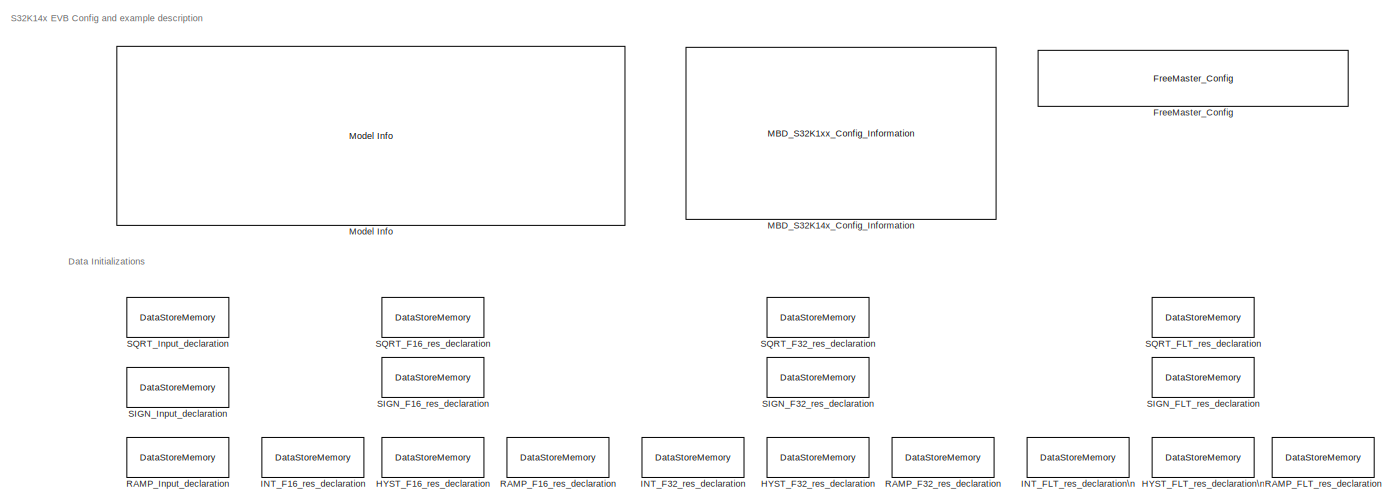
[diagram: root canvas - part 1/4, full width, top band]
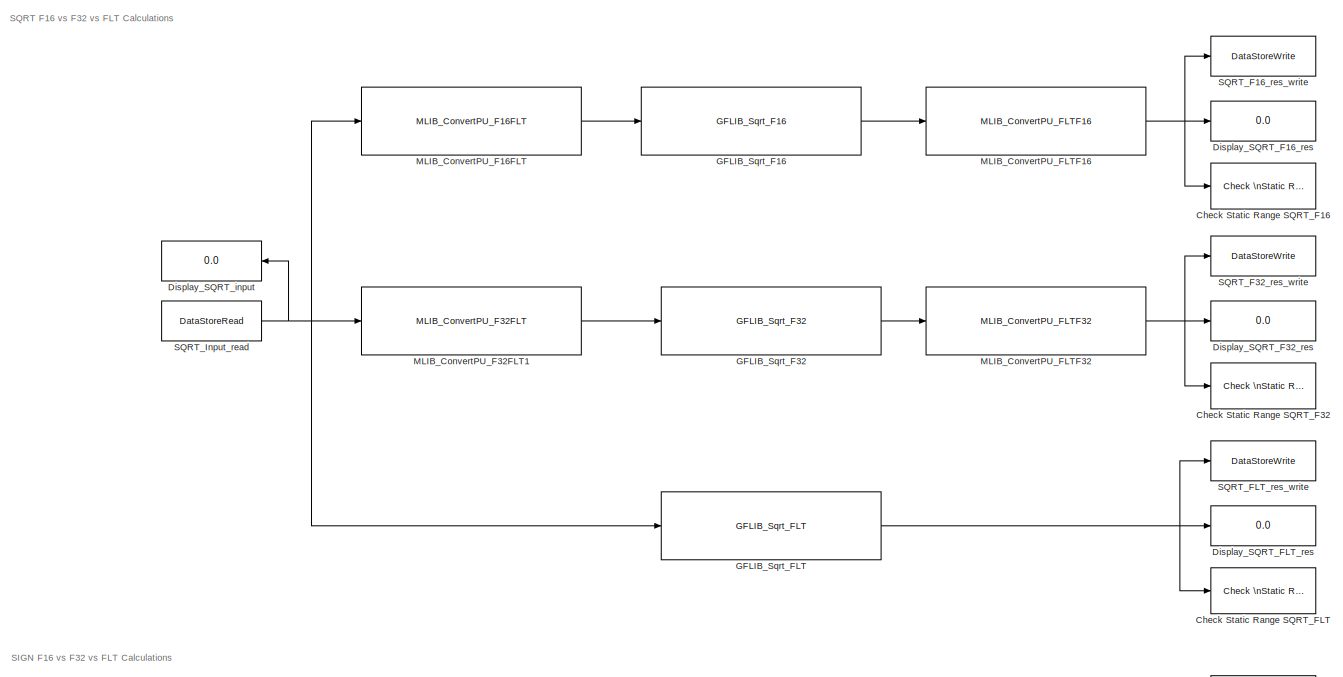
[diagram: root canvas - part 2/4, full width, middle band]
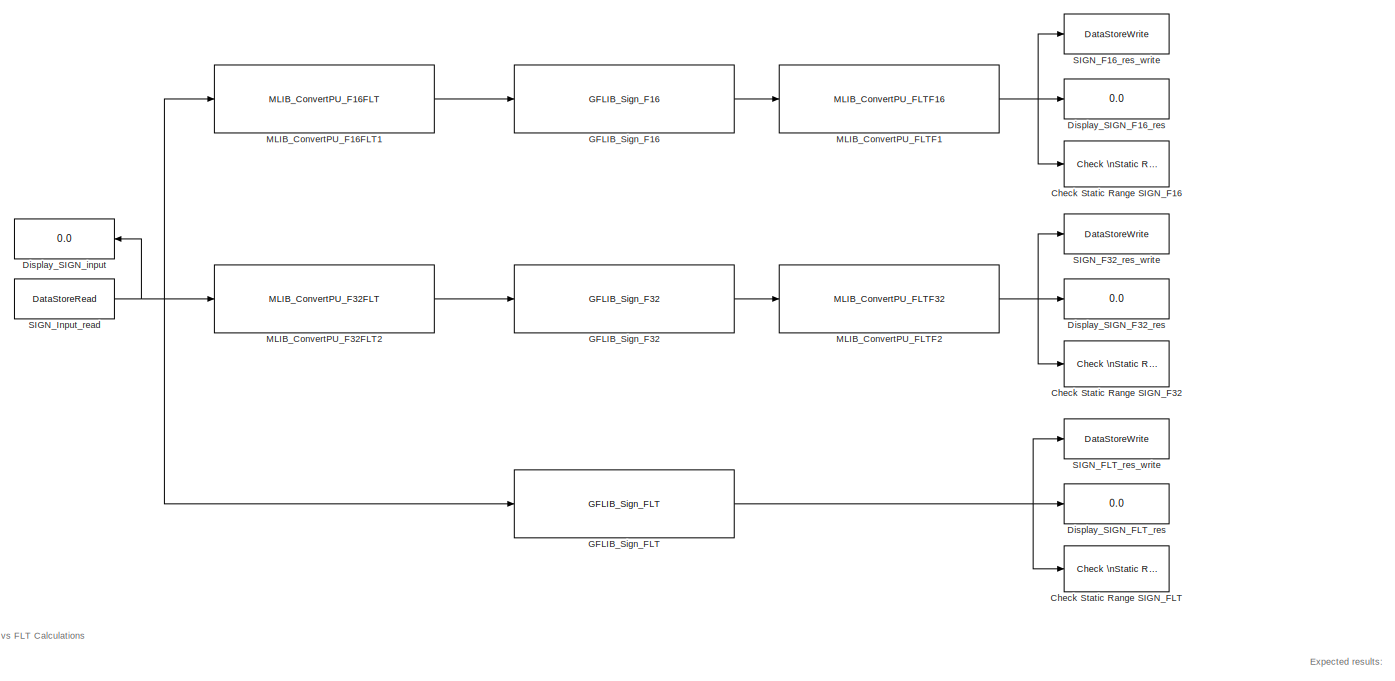
[diagram: root canvas - part 3/4, full width, middle band]
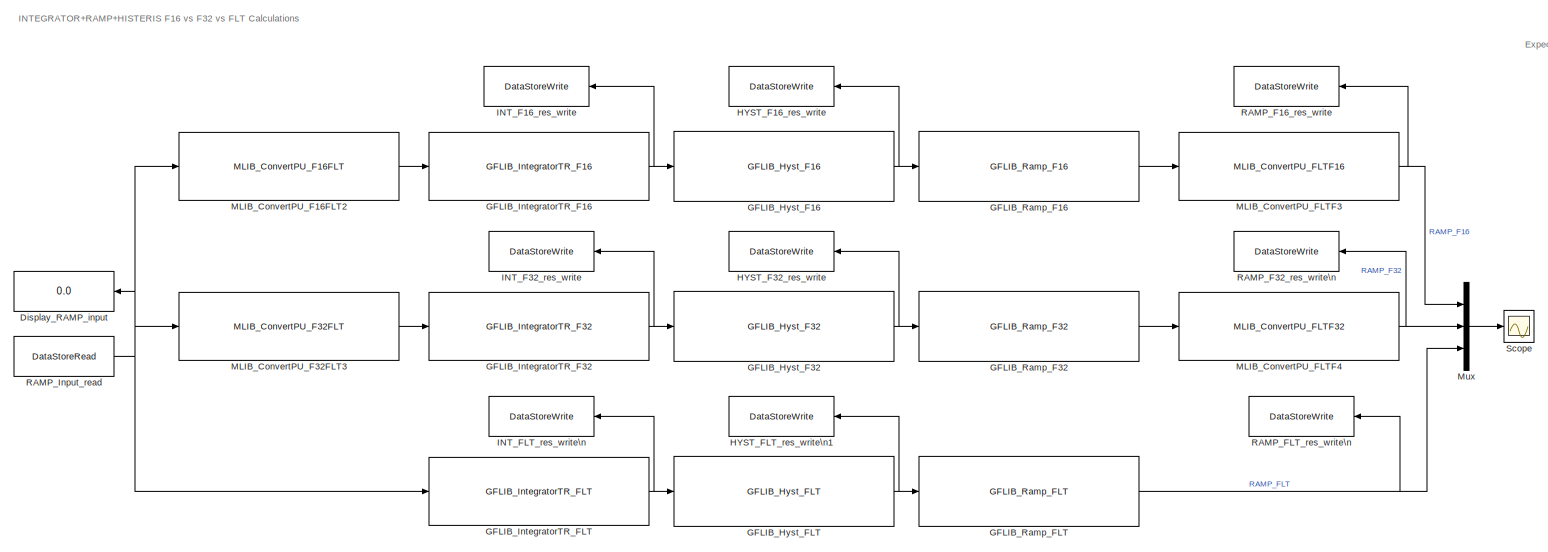
[diagram: root canvas - part 4/4, full width, bottom band]
MODEL ammclib_gflib_miscellaneous_s32k14x
KIND model
CONFIG InitFcn = mbd_s32k_consistency_checks(bdroot(gcs));
BLOCK [Reference] Check Static Range SIGN_F16   REF=simulink/Model\nVerification/Check \nStatic Range
  Description = -1 <= u <= 1
  Ports = [1]
  SID = 648
  SourceBlock = simulink/Model\nVerification/Check \nStatic Range
  SourceProductBaseCode = SL
  SourceProductName = Simulink
  SourceType = Checks_SRange
  enabled = on
  export = off
  icon = graphic
  max = 1
  max_included = on
  min = -1
  min_included = on
  stopWhenAssertionFail = on
BLOCK [Reference] Check Static Range SIGN_F32  REF=simulink/Model\nVerification/Check \nStatic Range
  Description = -1 <= u <= 1
  Ports = [1]
  SID = 649
  SourceBlock = simulink/Model\nVerification/Check \nStatic Range
  SourceProductBaseCode = SL
  SourceProductName = Simulink
  SourceType = Checks_SRange
  enabled = on
  export = off
  icon = graphic
  max = 1
  max_included = on
  min = -1
  min_included = on
  stopWhenAssertionFail = on
BLOCK [Reference] Check Static Range SIGN_FLT    REF=simulink/Model\nVerification/Check \nStatic Range
  Description = -1 <= u <= 1
  Ports = [1]
  SID = 650
  SourceBlock = simulink/Model\nVerification/Check \nStatic Range
  SourceProductBaseCode = SL
  SourceProductName = Simulink
  SourceType = Checks_SRange
  enabled = on
  export = off
  icon = graphic
  max = 1
  max_included = on
  min = -1
  min_included = on
  stopWhenAssertionFail = on
BLOCK [Reference] Check Static Range SQRT_F16   REF=simulink/Model\nVerification/Check \nStatic Range
  Description = 0.7 <= u <= 0.8
  Ports = [1]
  SID = 585
  SourceBlock = simulink/Model\nVerification/Check \nStatic Range
  SourceProductBaseCode = SL
  SourceProductName = Simulink
  SourceType = Checks_SRange
  enabled = on
  export = off
  icon = graphic
  max = 0.8
  max_included = on
  min = 0.7
  min_included = on
  stopWhenAssertionFail = on
BLOCK [Reference] Check Static Range SQRT_F32  REF=simulink/Model\nVerification/Check \nStatic Range
  Description = 0.7 <= u <= 0.8
  Ports = [1]
  SID = 641
  SourceBlock = simulink/Model\nVerification/Check \nStatic Range
  SourceProductBaseCode = SL
  SourceProductName = Simulink
  SourceType = Checks_SRange
  enabled = on
  export = off
  icon = graphic
  max = 0.8
  max_included = on
  min = 0.7
  min_included = on
  stopWhenAssertionFail = on
BLOCK [Reference] Check Static Range SQRT_FLT  REF=simulink/Model\nVerification/Check \nStatic Range
  Description = 0.7 <= u <= 0.8
  Ports = [1]
  SID = 646
  SourceBlock = simulink/Model\nVerification/Check \nStatic Range
  SourceProductBaseCode = SL
  SourceProductName = Simulink
  SourceType = Checks_SRange
  enabled = on
  export = off
  icon = graphic
  max = 0.8
  max_included = on
  min = 0.7
  min_included = on
  stopWhenAssertionFail = on
BLOCK [Display] Display_RAMP_input
  Decimation = 1
  Format = long
  Ports = [1]
  SID = 675
BLOCK [Display] Display_SIGN_F16_res
  Decimation = 1
  Format = long
  Ports = [1]
  SID = 651
BLOCK [Display] Display_SIGN_F32_res
  Decimation = 1
  Format = long
  Ports = [1]
  SID = 652
BLOCK [Display] Display_SIGN_FLT_res
  Decimation = 1
  Format = long
  Ports = [1]
  SID = 653
BLOCK [Display] Display_SIGN_input
  Decimation = 1
  Format = long
  Ports = [1]
  SID = 654
BLOCK [Display] Display_SQRT_F16_res
  Decimation = 1
  Format = long
  Ports = [1]
  SID = 579
BLOCK [Display] Display_SQRT_F32_res
  Decimation = 1
  Format = long
  Ports = [1]
  SID = 638
BLOCK [Display] Display_SQRT_FLT_res
  Decimation = 1
  Format = long
  Ports = [1]
  SID = 645
BLOCK [Display] Display_SQRT_input
  Decimation = 1
  Format = long
  Ports = [1]
  SID = 584
BLOCK [Reference] FreeMaster_Config  REF=mbd_s32k1xx_ec_toolbox/Utility Blocks/FreeMaster_Config
  Ports = []
  SID = 564
  SourceBlock = mbd_s32k1xx_ec_toolbox/Utility Blocks/FreeMaster_Config
  SourceType = fm_s32k_config
  baudrate = 115200
  comm_buffer_size = 255
  comm_buffer_size_auto = on
  comm_rqueue_size = 32
  comm_rqueue_size_default = on
  interface = LPUART1
  isr_prio = 15
  max_rec_vars = 8
  max_scope_vars = 8
  mode = Short Interrupt
  rec_buff_size = 1024
  rec_timebase = 0
  rec_timebase_unit = milliseconds
  rxd = PTC6: [LPUART1_RX | Receive]
  show_adv_opts = off
  txd = PTC7: [LPUART1_TX | Transmit]
  use_recorder = on
  use_scope = on
BLOCK [Reference] GFLIB_Hyst_F16  REF=ammclib_bam_s32k14x/GFLIB/bam_f16/GFLIB_Hyst_F16  (lib defined in mdl_f341c9dd7fd9)
  Ports = [1, 1]
  SID = 682
  SourceBlock = ammclib_bam_s32k14x/GFLIB/bam_f16/GFLIB_Hyst_F16
  SourceType = GFLIB_Hyst_F16
  f16HystOff = -(2^15-1)/2
  f16HystOn = (2^15-1)/2
  f16OutValOff = -0.03*(2^15-1)
  f16OutValOn = 0.03*(2^15-1)
BLOCK [Reference] GFLIB_Hyst_F32  REF=ammclib_bam_s32k14x/GFLIB/bam_f32/GFLIB_Hyst_F32  (lib defined in mdl_f341c9dd7fd9)
  Ports = [1, 1]
  SID = 695
  SourceBlock = ammclib_bam_s32k14x/GFLIB/bam_f32/GFLIB_Hyst_F32
  SourceType = GFLIB_Hyst_F32
  f32HystOff = -(2^31-1)/2
  f32HystOn = (2^31-1)/2
  f32OutValOff = -0.03*(2^31-1)
  f32OutValOn = 0.03*(2^31-1)
BLOCK [Reference] GFLIB_Hyst_FLT  REF=ammclib_bam_s32k14x/GFLIB/bam_flt/GFLIB_Hyst_FLT  (lib defined in mdl_f341c9dd7fd9)
  Ports = [1, 1]
  SID = 702
  SourceBlock = ammclib_bam_s32k14x/GFLIB/bam_flt/GFLIB_Hyst_FLT
  SourceType = GFLIB_Hyst_FLT
  fltHystOff = -0.5
  fltHystOn = 0.5
  fltOutValOff = -0.03
  fltOutValOn = 0.03
BLOCK [Reference] GFLIB_IntegratorTR_F16  REF=ammclib_bam_s32k14x/GFLIB/bam_f16/GFLIB_IntegratorTR_F16  (lib defined in mdl_f341c9dd7fd9)
  Ports = [1, 1]
  SID = 678
  SourceBlock = ammclib_bam_s32k14x/GFLIB/bam_f16/GFLIB_IntegratorTR_F16
  SourceType = GFLIB_IntegratorTR_F16
  f16C1 = 0.003*(2^15-1)
  u16NShift = 0
BLOCK [Reference] GFLIB_IntegratorTR_F32  REF=ammclib_bam_s32k14x/GFLIB/bam_f32/GFLIB_IntegratorTR_F32  (lib defined in mdl_f341c9dd7fd9)
  Ports = [1, 1]
  SID = 694
  SourceBlock = ammclib_bam_s32k14x/GFLIB/bam_f32/GFLIB_IntegratorTR_F32
  SourceType = GFLIB_IntegratorTR_F32
  f32C1 = 0.003*(2^31-1)
  u16NShift = 0
BLOCK [Reference] GFLIB_IntegratorTR_FLT  REF=ammclib_bam_s32k14x/GFLIB/bam_flt/GFLIB_IntegratorTR_FLT  (lib defined in mdl_f341c9dd7fd9)
  Ports = [1, 1]
  SID = 701
  SourceBlock = ammclib_bam_s32k14x/GFLIB/bam_flt/GFLIB_IntegratorTR_FLT
  SourceType = GFLIB_IntegratorTR_FLT
  fltC1 = 0.003
BLOCK [Reference] GFLIB_Ramp_F16  REF=ammclib_bam_s32k14x/GFLIB/bam_f16/GFLIB_Ramp_F16  (lib defined in mdl_f341c9dd7fd9)
  Ports = [1, 1]
  SID = 680
  SourceBlock = ammclib_bam_s32k14x/GFLIB/bam_f16/GFLIB_Ramp_F16
  SourceType = GFLIB_Ramp
  f16RampDown = 0.0001*(2^15-1)
  f16RampUp = 0.0001*(2^15-1)
BLOCK [Reference] GFLIB_Ramp_F32  REF=ammclib_bam_s32k14x/GFLIB/bam_f32/GFLIB_Ramp_F32  (lib defined in mdl_f341c9dd7fd9)
  Ports = [1, 1]
  SID = 696
  SourceBlock = ammclib_bam_s32k14x/GFLIB/bam_f32/GFLIB_Ramp_F32
  SourceType = GFLIB_Ramp
  f32RampDown = 0.0001*(2^31-1)
  f32RampUp = 0.0001*(2^31-1)
BLOCK [Reference] GFLIB_Ramp_FLT  REF=ammclib_bam_s32k14x/GFLIB/bam_flt/GFLIB_Ramp_FLT  (lib defined in mdl_f341c9dd7fd9)
  Ports = [1, 1]
  SID = 703
  SourceBlock = ammclib_bam_s32k14x/GFLIB/bam_flt/GFLIB_Ramp_FLT
  SourceType = GFLIB_Ramp
  fltRampDown = 0.0001
  fltRampUp = 0.0001
BLOCK [Reference] GFLIB_Sign_F16  REF=ammclib_bam_s32k14x/GFLIB/bam_f16/GFLIB_Sign_F16  (lib defined in mdl_f341c9dd7fd9)
  Ports = [1, 1]
  SID = 669
  SourceBlock = ammclib_bam_s32k14x/GFLIB/bam_f16/GFLIB_Sign_F16
  SourceType = GFLIB_Sign_F16
BLOCK [Reference] GFLIB_Sign_F32  REF=ammclib_bam_s32k14x/GFLIB/bam_f32/GFLIB_Sign_F32  (lib defined in mdl_f341c9dd7fd9)
  Ports = [1, 1]
  SID = 668
  SourceBlock = ammclib_bam_s32k14x/GFLIB/bam_f32/GFLIB_Sign_F32
  SourceType = GFLIB_Sign_F32
BLOCK [Reference] GFLIB_Sign_FLT  REF=ammclib_bam_s32k14x/GFLIB/bam_flt/GFLIB_Sign_FLT  (lib defined in mdl_f341c9dd7fd9)
  Ports = [1, 1]
  SID = 667
  SourceBlock = ammclib_bam_s32k14x/GFLIB/bam_flt/GFLIB_Sign_FLT
  SourceType = GFLIB_Sign_FLT
BLOCK [Reference] GFLIB_Sqrt_F16  REF=ammclib_bam_s32k14x/GFLIB/bam_f16/GFLIB_Sqrt_F16  (lib defined in mdl_f341c9dd7fd9)
  Ports = [1, 1]
  SID = 632
  SourceBlock = ammclib_bam_s32k14x/GFLIB/bam_f16/GFLIB_Sqrt_F16
  SourceType = GFLIB_Sqrt_F16
BLOCK [Reference] GFLIB_Sqrt_F32  REF=ammclib_bam_s32k14x/GFLIB/bam_f32/GFLIB_Sqrt_F32  (lib defined in mdl_f341c9dd7fd9)
  Ports = [1, 1]
  SID = 634
  SourceBlock = ammclib_bam_s32k14x/GFLIB/bam_f32/GFLIB_Sqrt_F32
  SourceType = GFLIB_Sqrt_F32
BLOCK [Reference] GFLIB_Sqrt_FLT  REF=ammclib_bam_s32k14x/GFLIB/bam_flt/GFLIB_Sqrt_FLT  (lib defined in mdl_f341c9dd7fd9)
  Ports = [1, 1]
  SID = 642
  SourceBlock = ammclib_bam_s32k14x/GFLIB/bam_flt/GFLIB_Sqrt_FLT
  SourceType = GFLIB_Sqrt_FLT
BLOCK [DataStoreMemory] HYST_F16_res_declaration
  DataStoreName = HYST_F16_res
  OutDataTypeStr = int16
  Priority = 2
  ReadBeforeWriteMsg = warning
  SID = 687
  ShowAdditionalParam = off
  WriteAfterReadMsg = warning
  WriteAfterWriteMsg = warning
BLOCK [DataStoreWrite] HYST_F16_res_write
  DataStoreName = HYST_F16_res
  Ports = [1]
  SID = 691
BLOCK [DataStoreMemory] HYST_F32_res_declaration
  DataStoreName = HYST_F32_res
  OutDataTypeStr = int32
  Priority = 2
  ReadBeforeWriteMsg = warning
  SID = 708
  ShowAdditionalParam = off
  WriteAfterReadMsg = warning
  WriteAfterWriteMsg = warning
BLOCK [DataStoreWrite] HYST_F32_res_write
  DataStoreName = HYST_F32_res
  Ports = [1]
  SID = 716
BLOCK [DataStoreMemory] HYST_FLT_res_declaration\n
  DataStoreName = HYST_FLT_res
  OutDataTypeStr = single
  Priority = 2
  ReadBeforeWriteMsg = warning
  SID = 711
  ShowAdditionalParam = off
  WriteAfterReadMsg = warning
  WriteAfterWriteMsg = warning
BLOCK [DataStoreWrite] HYST_FLT_res_write\n1
  DataStoreName = HYST_FLT_res
  Ports = [1]
  SID = 718
BLOCK [DataStoreMemory] INT_F16_res_declaration
  DataStoreName = INT_F16_res
  OutDataTypeStr = int16
  Priority = 2
  ReadBeforeWriteMsg = warning
  SID = 686
  ShowAdditionalParam = off
  WriteAfterReadMsg = warning
  WriteAfterWriteMsg = warning
BLOCK [DataStoreWrite] INT_F16_res_write
  DataStoreName = INT_F16_res
  Ports = [1]
  SID = 690
BLOCK [DataStoreMemory] INT_F32_res_declaration
  DataStoreName = INT_F32_res
  OutDataTypeStr = int32
  Priority = 2
  ReadBeforeWriteMsg = warning
  SID = 707
  ShowAdditionalParam = off
  WriteAfterReadMsg = warning
  WriteAfterWriteMsg = warning
BLOCK [DataStoreWrite] INT_F32_res_write
  DataStoreName = INT_F32_res
  Ports = [1]
  SID = 713
BLOCK [DataStoreMemory] INT_FLT_res_declaration\n
  DataStoreName = INT_FLT_res
  OutDataTypeStr = single
  Priority = 2
  ReadBeforeWriteMsg = warning
  SID = 710
  ShowAdditionalParam = off
  WriteAfterReadMsg = warning
  WriteAfterWriteMsg = warning
BLOCK [DataStoreWrite] INT_FLT_res_write\n
  DataStoreName = INT_FLT_res
  Ports = [1]
  SID = 714
BLOCK [Reference] MBD_S32K14x_Config_Information  REF=mbd_s32k1xx_ec_toolbox/MBD_S32K1xx_Config_Information
  ADC_PcrCheckEnDis = on
  AMMCLIB_PcrCheckEnDis = on
  CMP_PcrCheckEnDis = on
  CSEc_PcrCheckEnDis = on
  ConfigParams_PcrCheckEnDis = on
  FM_PcrCheckEnDis = on
  FTM_Dual_Edge_Inputs_PcrCheckEnDis = on
  FTM_Hall_Sensor_Inputs_PcrCheckEnDis = on
  FTM_Input_Edge_Inputs_PcrCheckEnDis = on
  FTM_PWM_PcrCheckEnDis = on
  FTM_Quadrature_Inputs_PcrCheckEnDis = on
  FlexCAN_PcrCheckEnDis = on
  FlexIO_PcrCheckEnDis = on
  GPIO_InputPcrCheckEnDis = on
  GPIO_OutputPcrCheckEnDis = on
  LIN_PcrCheckEnDis = on
  LPI2C_PcrCheckEnDis = on
  LPSPI_PcrCheckEnDis = on
  LPTMR_PcrCheckEnDis = on
  LPUART_PcrCheckEnDis = on
  ModelRef_PcrCheckEnDis = on
  PDB0_PcrCheckEnDis = on
  PIT_PcrCheckEnDis = on
  Ports = []
  Priority = 0
  Profile_PcrCheckEnDis = on
  RTC_PcrCheckEnDis = on
  SBC_PcrCheckEnDis = on
  SID = 1
  SourceBlock = mbd_s32k1xx_ec_toolbox/MBD_S32K1xx_Config_Information
  SourceType = MBDTBX_EC_S32K
  WDOG_PcrCheckEnDis = on
  config_params = []
  disp_str = Target : S32K142-16KB_SRAM\nPackage : 100-pin\nSystem clock : 80 MHz\nXTAL clock : External 8 MHz\nCompiler : GCC\nTarget Type : FLASH\nDownload Code after build : (OpenSDA: E)\nStep Tick Interrupt Priority : 15
  ds_import_enable = on
  eDMA_PcrCheckEnDis = on
  gcc_target_assemble_opts = -mcpu=cortex-m4 -mthumb -mfloat-abi=hard -mfpu=fpv4-sp-d16 -g
  gcc_target_compile_opts = -mcpu=cortex-m4 -mthumb -mfloat-abi=hard -mfpu=fpv4-sp-d16 -O1 -g -gstrict-dwarf
  gcc_target_default_lcf = on
  gcc_target_link_opts = -mcpu=cortex-m4 -mthumb -mfloat-abi=hard -mfpu=fpv4-sp-d16
  gcc_target_user_lcf = S32K144_64_flash.ld
  ghs_target_assemble_opts = -cpu=cortexm4f -fpu=vfpv4_d16
  ghs_target_compile_opts = -cpu=cortexm4f -thumb -DARM_MATH_CM4 -fpu=vfpv4_d16 -fsingle -Ogeneral -Wundef -Wimplicit-int -Wshadow -Wtrigraphs --no_commons --gnu_asm -gnu99 -gdwarf-2 -G
  ghs_target_default_lcf = off
  ghs_target_link_opts = -cpu=cortexm4f -thumb -fpu=vfpv4_d16
  ghs_target_user_lcf = S32K144_64_flash.ld
  iar_target_assemble_opts = --cpu Cortex-M4F --thumb --fpu VFPv4_sp
  iar_target_compile_opts = --cpu=Cortex-M4F --thumb --fpu=VFPv4_sp -Ol -e --debug --dlib_config normal
  iar_target_default_lcf = off
  iar_target_link_opts = --no_exceptions --vfe --inline
  iar_target_user_lcf = S32K144_64_flash.icf
  mbdt_ver = 0
  mcu_steptick_prio = 15
  mcu_steptick_timer = LPIT Channel 0
  mcu_system_clock_freq = 80
  mcu_target_name = S32K144
  mcu_target_package = 100-LQFP
  mcu_target_sram_size = 64KB
  mcu_xtal_freq = External 8
  pil_download_enable = off
  pil_download_rate = 57600
  pil_opensda_drive = Custom
  pil_opensda_drive_custom = D
  pil_uart_instance = 0
  pil_uart_rx = PTA2: [LPUART0_RX | Receive]
  pil_uart_tx = PTA3: [LPUART0_TX | Transmit]
  rbl_com_port = Custom
  rbl_com_port_custom = COM1
  rbl_download_enable = on
  rbl_download_interface = OpenSDA
  rbl_restart_request = off
  rbl_start_delay = 5000000
  target_compiler = GCC
  target_memory = FLASH
BLOCK [Reference] MLIB_ConvertPU_F16FLT  REF=ammclib_bam_s32k14x/MLIB/bam_f16/MLIB_ConvertPU_F16FLT  (lib defined in mdl_f341c9dd7fd9)
  Ports = [1, 1]
  SID = 569
  SourceBlock = ammclib_bam_s32k14x/MLIB/bam_f16/MLIB_ConvertPU_F16FLT
  SourceType = MLIB_ConvertPU_F16
BLOCK [Reference] MLIB_ConvertPU_F16FLT1  REF=ammclib_bam_s32k14x/MLIB/bam_f16/MLIB_ConvertPU_F16FLT  (lib defined in mdl_f341c9dd7fd9)
  Ports = [1, 1]
  SID = 658
  SourceBlock = ammclib_bam_s32k14x/MLIB/bam_f16/MLIB_ConvertPU_F16FLT
  SourceType = MLIB_ConvertPU_F16
BLOCK [Reference] MLIB_ConvertPU_F16FLT2  REF=ammclib_bam_s32k14x/MLIB/bam_f16/MLIB_ConvertPU_F16FLT  (lib defined in mdl_f341c9dd7fd9)
  Ports = [1, 1]
  SID = 677
  SourceBlock = ammclib_bam_s32k14x/MLIB/bam_f16/MLIB_ConvertPU_F16FLT
  SourceType = MLIB_ConvertPU_F16
BLOCK [Reference] MLIB_ConvertPU_F32FLT1  REF=ammclib_bam_s32k14x/MLIB/bam_f32/MLIB_ConvertPU_F32FLT  (lib defined in mdl_f341c9dd7fd9)
  Ports = [1, 1]
  SID = 633
  SourceBlock = ammclib_bam_s32k14x/MLIB/bam_f32/MLIB_ConvertPU_F32FLT
  SourceType = MLIB_ConvertPU_F32
BLOCK [Reference] MLIB_ConvertPU_F32FLT2  REF=ammclib_bam_s32k14x/MLIB/bam_f32/MLIB_ConvertPU_F32FLT  (lib defined in mdl_f341c9dd7fd9)
  Ports = [1, 1]
  SID = 659
  SourceBlock = ammclib_bam_s32k14x/MLIB/bam_f32/MLIB_ConvertPU_F32FLT
  SourceType = MLIB_ConvertPU_F32
BLOCK [Reference] MLIB_ConvertPU_F32FLT3  REF=ammclib_bam_s32k14x/MLIB/bam_f32/MLIB_ConvertPU_F32FLT  (lib defined in mdl_f341c9dd7fd9)
  Ports = [1, 1]
  SID = 693
  SourceBlock = ammclib_bam_s32k14x/MLIB/bam_f32/MLIB_ConvertPU_F32FLT
  SourceType = MLIB_ConvertPU_F32
BLOCK [Reference] MLIB_ConvertPU_FLTF1  REF=ammclib_bam_s32k14x/MLIB/bam_flt/MLIB_ConvertPU_FLTF16  (lib defined in mdl_f341c9dd7fd9)
  Ports = [1, 1]
  SID = 660
  SourceBlock = ammclib_bam_s32k14x/MLIB/bam_flt/MLIB_ConvertPU_FLTF16
  SourceType = MLIB_ConvertPU_FLT
BLOCK [Reference] MLIB_ConvertPU_FLTF16  REF=ammclib_bam_s32k14x/MLIB/bam_flt/MLIB_ConvertPU_FLTF16  (lib defined in mdl_f341c9dd7fd9)
  Ports = [1, 1]
  SID = 639
  SourceBlock = ammclib_bam_s32k14x/MLIB/bam_flt/MLIB_ConvertPU_FLTF16
  SourceType = MLIB_ConvertPU_FLT
BLOCK [Reference] MLIB_ConvertPU_FLTF2  REF=ammclib_bam_s32k14x/MLIB/bam_flt/MLIB_ConvertPU_FLTF32  (lib defined in mdl_f341c9dd7fd9)
  Ports = [1, 1]
  SID = 661
  SourceBlock = ammclib_bam_s32k14x/MLIB/bam_flt/MLIB_ConvertPU_FLTF32
  SourceType = MLIB_ConvertPU_FLT
BLOCK [Reference] MLIB_ConvertPU_FLTF3  REF=ammclib_bam_s32k14x/MLIB/bam_flt/MLIB_ConvertPU_FLTF16  (lib defined in mdl_f341c9dd7fd9)
  Ports = [1, 1]
  SID = 689
  SourceBlock = ammclib_bam_s32k14x/MLIB/bam_flt/MLIB_ConvertPU_FLTF16
  SourceType = MLIB_ConvertPU_FLT
BLOCK [Reference] MLIB_ConvertPU_FLTF32  REF=ammclib_bam_s32k14x/MLIB/bam_flt/MLIB_ConvertPU_FLTF32  (lib defined in mdl_f341c9dd7fd9)
  Ports = [1, 1]
  SID = 640
  SourceBlock = ammclib_bam_s32k14x/MLIB/bam_flt/MLIB_ConvertPU_FLTF32
  SourceType = MLIB_ConvertPU_FLT
BLOCK [Reference] MLIB_ConvertPU_FLTF4  REF=ammclib_bam_s32k14x/MLIB/bam_flt/MLIB_ConvertPU_FLTF32  (lib defined in mdl_f341c9dd7fd9)
  Ports = [1, 1]
  SID = 697
  SourceBlock = ammclib_bam_s32k14x/MLIB/bam_flt/MLIB_ConvertPU_FLTF32
  SourceType = MLIB_ConvertPU_FLT
BLOCK [Reference] Model Info  REF=simulink/Model-Wide\nUtilities/Model Info
  DisplayStringWithTags = Model Name: %<ModelName>\n\nDescription: %<Description>
  Frame = off
  HorizontalTextAlignment = Left
  LeftAlignmentValue = 0.02
  MaskDisplayString = Model Name: ammclib_gflib_miscellaneous_s32k14x\\n\\nDescription: This model tests the AMMCLIB GFLIB SQRT, SIGN, HYST, RAMP and INTEGRATOR blocks\\n\\nValidation:\\n- Run the model in Simulation and compare the Inputs vs Outputs results.\\n- Open Freemaster (ammclib_gflib_miscellaneous_s32k14x.pmp) and compare the HW results against the Simulated ones
  Ports = []
  SID = 524
  SourceBlock = simulink/Model-Wide\nUtilities/Model Info
  SourceProductBaseCode = SL
  SourceProductName = Simulink
  SourceType = CMBlock
BLOCK [Mux] Mux
  DisplayOption = bar
  Inputs = 3
  Ports = [3, 1]
  SID = 720
BLOCK [DataStoreMemory] RAMP_F16_res_declaration
  DataStoreName = RAMP_F16_res
  OutDataTypeStr = single
  Priority = 2
  ReadBeforeWriteMsg = warning
  SID = 688
  ShowAdditionalParam = off
  WriteAfterReadMsg = warning
  WriteAfterWriteMsg = warning
BLOCK [DataStoreWrite] RAMP_F16_res_write
  DataStoreName = RAMP_F16_res
  Ports = [1]
  SID = 692
BLOCK [DataStoreMemory] RAMP_F32_res_declaration
  DataStoreName = RAMP_F32_res
  OutDataTypeStr = single
  Priority = 2
  ReadBeforeWriteMsg = warning
  SID = 709
  ShowAdditionalParam = off
  WriteAfterReadMsg = warning
  WriteAfterWriteMsg = warning
BLOCK [DataStoreWrite] RAMP_F32_res_write\n
  DataStoreName = RAMP_F32_res
  Ports = [1]
  SID = 717
BLOCK [DataStoreMemory] RAMP_FLT_res_declaration
  DataStoreName = RAMP_FLT_res
  OutDataTypeStr = single
  Priority = 2
  ReadBeforeWriteMsg = warning
  SID = 712
  ShowAdditionalParam = off
  WriteAfterReadMsg = warning
  WriteAfterWriteMsg = warning
BLOCK [DataStoreWrite] RAMP_FLT_res_write\n
  DataStoreName = RAMP_FLT_res
  Ports = [1]
  SID = 719
BLOCK [DataStoreMemory] RAMP_Input_declaration
  DataStoreName = RAMP_Input
  InitialValue = 0.1
  OutDataTypeStr = single
  OutMax = 1
  OutMin = -1
  Priority = 1
  SID = 673
  ShowAdditionalParam = off
  WriteAfterReadMsg = warning
  WriteAfterWriteMsg = warning
BLOCK [DataStoreRead] RAMP_Input_read
  DataStoreName = RAMP_Input
  Ports = [0, 1]
  SID = 676
BLOCK [DataStoreMemory] SIGN_F16_res_declaration
  DataStoreName = SIGN_F16_res
  OutDataTypeStr = single
  Priority = 2
  ReadBeforeWriteMsg = warning
  SID = 670
  ShowAdditionalParam = off
  WriteAfterReadMsg = warning
  WriteAfterWriteMsg = warning
BLOCK [DataStoreWrite] SIGN_F16_res_write
  DataStoreName = SIGN_F16_res
  Ports = [1]
  SID = 662
BLOCK [DataStoreMemory] SIGN_F32_res_declaration
  DataStoreName = SIGN_F32_res
  OutDataTypeStr = single
  Priority = 2
  ReadBeforeWriteMsg = warning
  SID = 671
  ShowAdditionalParam = off
  WriteAfterReadMsg = warning
  WriteAfterWriteMsg = warning
BLOCK [DataStoreWrite] SIGN_F32_res_write
  DataStoreName = SIGN_F32_res
  Ports = [1]
  SID = 663
BLOCK [DataStoreMemory] SIGN_FLT_res_declaration
  DataStoreName = SIGN_FLT_res
  OutDataTypeStr = single
  Priority = 2
  ReadBeforeWriteMsg = warning
  SID = 672
  ShowAdditionalParam = off
  WriteAfterReadMsg = warning
  WriteAfterWriteMsg = warning
BLOCK [DataStoreWrite] SIGN_FLT_res_write
  DataStoreName = SIGN_FLT_res
  Ports = [1]
  SID = 664
BLOCK [DataStoreMemory] SIGN_Input_declaration
  DataStoreName = SIGN_Input
  InitialValue = -0.5
  OutDataTypeStr = single
  OutMax = 1
  OutMin = -1
  Priority = 1
  SID = 647
  ShowAdditionalParam = off
  WriteAfterReadMsg = warning
  WriteAfterWriteMsg = warning
BLOCK [DataStoreRead] SIGN_Input_read
  DataStoreName = SIGN_Input
  Ports = [0, 1]
  SID = 665
BLOCK [DataStoreMemory] SQRT_F16_res_declaration
  DataStoreName = SQRT_F16_res
  OutDataTypeStr = single
  Priority = 2
  ReadBeforeWriteMsg = warning
  SID = 580
  ShowAdditionalParam = off
  WriteAfterReadMsg = warning
  WriteAfterWriteMsg = warning
BLOCK [DataStoreWrite] SQRT_F16_res_write
  DataStoreName = SQRT_F16_res
  Ports = [1]
  SID = 581
BLOCK [DataStoreMemory] SQRT_F32_res_declaration
  DataStoreName = SQRT_F32_res
  OutDataTypeStr = single
  Priority = 2
  ReadBeforeWriteMsg = warning
  SID = 610
  ShowAdditionalParam = off
  WriteAfterReadMsg = warning
  WriteAfterWriteMsg = warning
BLOCK [DataStoreWrite] SQRT_F32_res_write
  DataStoreName = SQRT_F32_res
  Ports = [1]
  SID = 636
BLOCK [DataStoreMemory] SQRT_FLT_res_declaration
  DataStoreName = SQRT_FLT_res
  OutDataTypeStr = single
  Priority = 2
  ReadBeforeWriteMsg = warning
  SID = 630
  ShowAdditionalParam = off
  WriteAfterReadMsg = warning
  WriteAfterWriteMsg = warning
BLOCK [DataStoreWrite] SQRT_FLT_res_write
  DataStoreName = SQRT_FLT_res
  Ports = [1]
  SID = 643
BLOCK [DataStoreMemory] SQRT_Input_declaration
  DataStoreName = SQRT_Input
  InitialValue = 0.5
  OutDataTypeStr = single
  OutMax = 1
  OutMin = 0
  Priority = 1
  SID = 582
  ShowAdditionalParam = off
  WriteAfterReadMsg = warning
  WriteAfterWriteMsg = warning
BLOCK [DataStoreRead] SQRT_Input_read
  DataStoreName = SQRT_Input
  Ports = [0, 1]
  SID = 583
BLOCK [Scope] Scope
  NumInputPorts = 1
  Ports = [1]
  SID = 721
  ScopeSpecificationString = Simulink.scopes.TimeScopeBlockCfg('CurrentConfiguration', extmgr.ConfigurationSet(extmgr.Configuration('Core','General UI',true),extmgr.Configuration('Core','Source UI',true),extmgr.Configuration('Sources','WiredSimulink',true),extmgr.Configuration('Visuals','Time Domain',true,'SerializedDisplays',{struct('MinYLimReal','-0.0375','MaxYLimReal','0.0375','YLabelReal','','MinYLimMag','0.00000','MaxYLi...<+1672ch>
ANNOTATION (root): \n \n Expected results: \n
ANNOTATION (root): Data Initializations
ANNOTATION (root): INTEGRATOR+RAMP+HISTERIS F16 vs F32 vs FLT Calculations
ANNOTATION (root): S32K14x EVB Config and example description
ANNOTATION (root): SIGN F16 vs F32 vs FLT Calculations
ANNOTATION (root): SQRT F16 vs F32 vs FLT Calculations
NET GFLIB_Hyst_F16:1 -> GFLIB_Ramp_F16:1, HYST_F16_res_write:1
NET GFLIB_Hyst_F32:1 -> GFLIB_Ramp_F32:1, HYST_F32_res_write:1
NET GFLIB_Hyst_FLT:1 -> GFLIB_Ramp_FLT:1, HYST_FLT_res_write\n1:1
NET GFLIB_IntegratorTR_F16:1 -> GFLIB_Hyst_F16:1, INT_F16_res_write:1
NET GFLIB_IntegratorTR_F32:1 -> GFLIB_Hyst_F32:1, INT_F32_res_write:1
NET GFLIB_IntegratorTR_FLT:1 -> GFLIB_Hyst_FLT:1, INT_FLT_res_write\n:1
LINE GFLIB_Ramp_F16:1 -> MLIB_ConvertPU_FLTF3:1
LINE GFLIB_Ramp_F32:1 -> MLIB_ConvertPU_FLTF4:1
NET GFLIB_Ramp_FLT:1 -> Mux:3, RAMP_FLT_res_write\n:1
LINE GFLIB_Sign_F16:1 -> MLIB_ConvertPU_FLTF1:1
LINE GFLIB_Sign_F32:1 -> MLIB_ConvertPU_FLTF2:1
NET GFLIB_Sign_FLT:1 -> Check Static Range SIGN_FLT  :1, Display_SIGN_FLT_res:1, SIGN_FLT_res_write:1
LINE GFLIB_Sqrt_F16:1 -> MLIB_ConvertPU_FLTF16:1
LINE GFLIB_Sqrt_F32:1 -> MLIB_ConvertPU_FLTF32:1
NET GFLIB_Sqrt_FLT:1 -> Check Static Range SQRT_FLT:1, Display_SQRT_FLT_res:1, SQRT_FLT_res_write:1
LINE MLIB_ConvertPU_F16FLT1:1 -> GFLIB_Sign_F16:1
LINE MLIB_ConvertPU_F16FLT2:1 -> GFLIB_IntegratorTR_F16:1
LINE MLIB_ConvertPU_F16FLT:1 -> GFLIB_Sqrt_F16:1
LINE MLIB_ConvertPU_F32FLT1:1 -> GFLIB_Sqrt_F32:1
LINE MLIB_ConvertPU_F32FLT2:1 -> GFLIB_Sign_F32:1
LINE MLIB_ConvertPU_F32FLT3:1 -> GFLIB_IntegratorTR_F32:1
NET MLIB_ConvertPU_FLTF16:1 -> Check Static Range SQRT_F16 :1, Display_SQRT_F16_res:1, SQRT_F16_res_write:1
NET MLIB_ConvertPU_FLTF1:1 -> Check Static Range SIGN_F16 :1, Display_SIGN_F16_res:1, SIGN_F16_res_write:1
NET MLIB_ConvertPU_FLTF2:1 -> Check Static Range SIGN_F32:1, Display_SIGN_F32_res:1, SIGN_F32_res_write:1
NET MLIB_ConvertPU_FLTF32:1 -> Check Static Range SQRT_F32:1, Display_SQRT_F32_res:1, SQRT_F32_res_write:1
NET MLIB_ConvertPU_FLTF3:1 -> Mux:1, RAMP_F16_res_write:1
NET MLIB_ConvertPU_FLTF4:1 -> Mux:2, RAMP_F32_res_write\n:1
LINE Mux:1 -> Scope:1
NET RAMP_Input_read:1 -> Display_RAMP_input:1, GFLIB_IntegratorTR_FLT:1, MLIB_ConvertPU_F16FLT2:1, MLIB_ConvertPU_F32FLT3:1
NET SIGN_Input_read:1 -> Display_SIGN_input:1, GFLIB_Sign_FLT:1, MLIB_ConvertPU_F16FLT1:1, MLIB_ConvertPU_F32FLT2:1
NET SQRT_Input_read:1 -> Display_SQRT_input:1, GFLIB_Sqrt_FLT:1, MLIB_ConvertPU_F16FLT:1, MLIB_ConvertPU_F32FLT1:1
note: NET lines group one-source signal fan-out (src -> all destinations, sorted); 1:1 wires keep LINE
